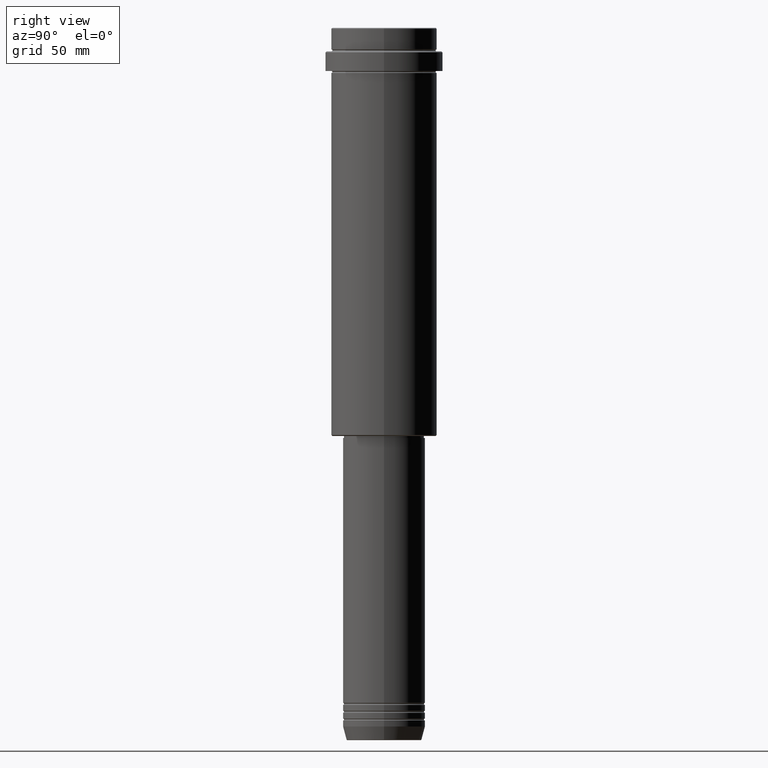
[diagram: clean part render]
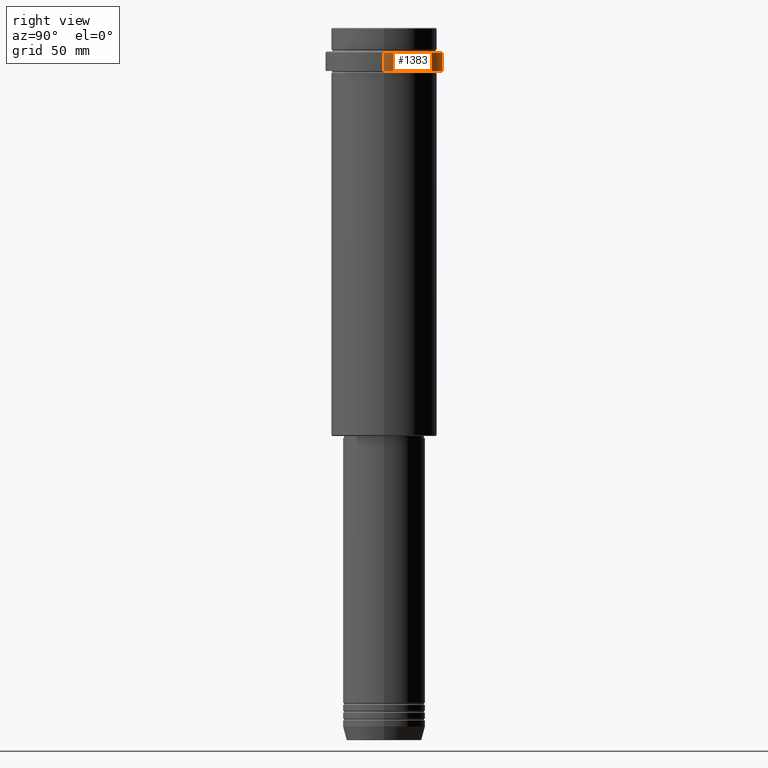
[diagram: same view with one face highlighted and labeled with its STEP entity id]
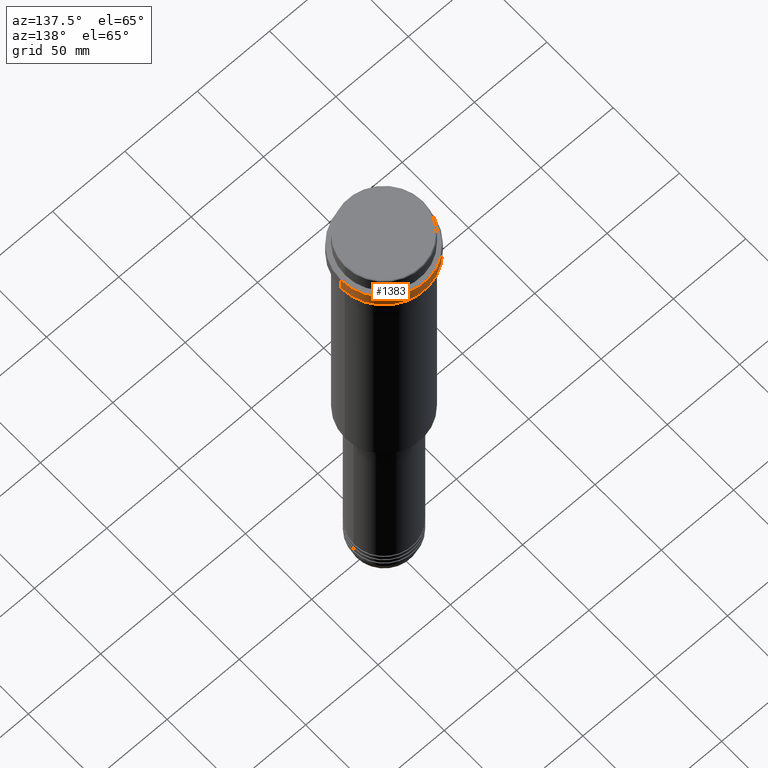
[diagram: same view with one face highlighted and labeled with its STEP entity id]
A machine part, right view. The second image highlights one B-rep face of the part: STEP entity #1383.
A second angle (auxiliary view) of the same face is appended — the face is thin or edge-on in the first view.
In plain terms, the highlighted cylindrical surface (partial cylindrical patch) has radius 30 mm, axis along (-0, -0, 1).
Its self-contained STEP definition (entity closure, byte-faithful):
#9 = EDGE_CURVE ( 'NONE', #1410, #94, #1294, .T. ) ;
#13 = CARTESIAN_POINT ( 'NONE',  ( 0.000000000000000000, 0.000000000000000000, -12.50000000000006573 ) ) ;
#27 = VERTEX_POINT ( 'NONE', #1184 ) ;
#63 = AXIS2_PLACEMENT_3D ( 'NONE', #1286, #742, #331 ) ;
#65 = VECTOR ( 'NONE', #276, 1000.000000000000000 ) ;
#94 = VERTEX_POINT ( 'NONE', #636 ) ;
#119 = DIRECTION ( 'NONE',  ( 1.000000000000000000, 0.000000000000000000, 0.000000000000000000 ) ) ;
#120 = EDGE_LOOP ( 'NONE', ( #369, #842, #1231, #899 ) ) ;
#202 = DIRECTION ( 'NONE',  ( -0.000000000000000000, -0.000000000000000000, 1.000000000000000000 ) ) ;
#229 = AXIS2_PLACEMENT_3D ( 'NONE', #13, #1299, #992 ) ;
#255 = CYLINDRICAL_SURFACE ( 'NONE', #812, 30.00000000000000000 ) ;
#276 = DIRECTION ( 'NONE',  ( -0.000000000000000000, -0.000000000000000000, 1.000000000000000000 ) ) ;
#321 = CARTESIAN_POINT ( 'NONE',  ( 30.00000000000000000, 0.000000000000000000, -12.50000000000006573 ) ) ;
#331 = DIRECTION ( 'NONE',  ( 1.000000000000000000, 0.000000000000000000, 0.000000000000000000 ) ) ;
#369 = ORIENTED_EDGE ( 'NONE', *, *, #9, .T. ) ;
#395 = LINE ( 'NONE', #837, #65 ) ;
#441 = EDGE_CURVE ( 'NONE', #1410, #565, #395, .T. ) ;
#565 = VERTEX_POINT ( 'NONE', #321 ) ;
#636 = CARTESIAN_POINT ( 'NONE',  ( -29.99999999999999645, 3.673940397442058389E-15, -22.00000000000000355 ) ) ;
#637 = EDGE_CURVE ( 'NONE', #27, #565, #874, .T. ) ;
#742 = DIRECTION ( 'NONE',  ( -0.000000000000000000, -0.000000000000000000, 1.000000000000000000 ) ) ;
#750 = LINE ( 'NONE', #1097, #1119 ) ;
#807 = CARTESIAN_POINT ( 'NONE',  ( 0.000000000000000000, 0.000000000000000000, 0.000000000000000000 ) ) ;
#812 = AXIS2_PLACEMENT_3D ( 'NONE', #807, #1006, #119 ) ;
#815 = FACE_OUTER_BOUND ( 'NONE', #120, .T. ) ;
#837 = CARTESIAN_POINT ( 'NONE',  ( 30.00000000000000000, 0.000000000000000000, 0.000000000000000000 ) ) ;
#842 = ORIENTED_EDGE ( 'NONE', *, *, #1282, .T. ) ;
#874 = CIRCLE ( 'NONE', #229, 30.00000000000000000 ) ;
#897 = CARTESIAN_POINT ( 'NONE',  ( 29.99999999999999645, 0.000000000000000000, -22.00000000000000355 ) ) ;
#899 = ORIENTED_EDGE ( 'NONE', *, *, #441, .F. ) ;
#992 = DIRECTION ( 'NONE',  ( 1.000000000000000000, 0.000000000000000000, 0.000000000000000000 ) ) ;
#1006 = DIRECTION ( 'NONE',  ( -0.000000000000000000, -0.000000000000000000, 1.000000000000000000 ) ) ;
#1097 = CARTESIAN_POINT ( 'NONE',  ( -30.00000000000000000, 3.673940397442059178E-15, 0.000000000000000000 ) ) ;
#1119 = VECTOR ( 'NONE', #202, 1000.000000000000000 ) ;
#1184 = CARTESIAN_POINT ( 'NONE',  ( -30.00000000000000000, 3.673940397442059178E-15, -12.50000000000006573 ) ) ;
#1231 = ORIENTED_EDGE ( 'NONE', *, *, #637, .T. ) ;
#1282 = EDGE_CURVE ( 'NONE', #94, #27, #750, .T. ) ;
#1286 = CARTESIAN_POINT ( 'NONE',  ( 0.000000000000000000, 0.000000000000000000, -22.00000000000000355 ) ) ;
#1294 = CIRCLE ( 'NONE', #63, 29.99999999999999645 ) ;
#1299 = DIRECTION ( 'NONE',  ( 0.000000000000000000, 0.000000000000000000, -1.000000000000000000 ) ) ;
#1383 = ADVANCED_FACE ( 'NONE', ( #815 ), #255, .T. ) ;
#1410 = VERTEX_POINT ( 'NONE', #897 ) ;